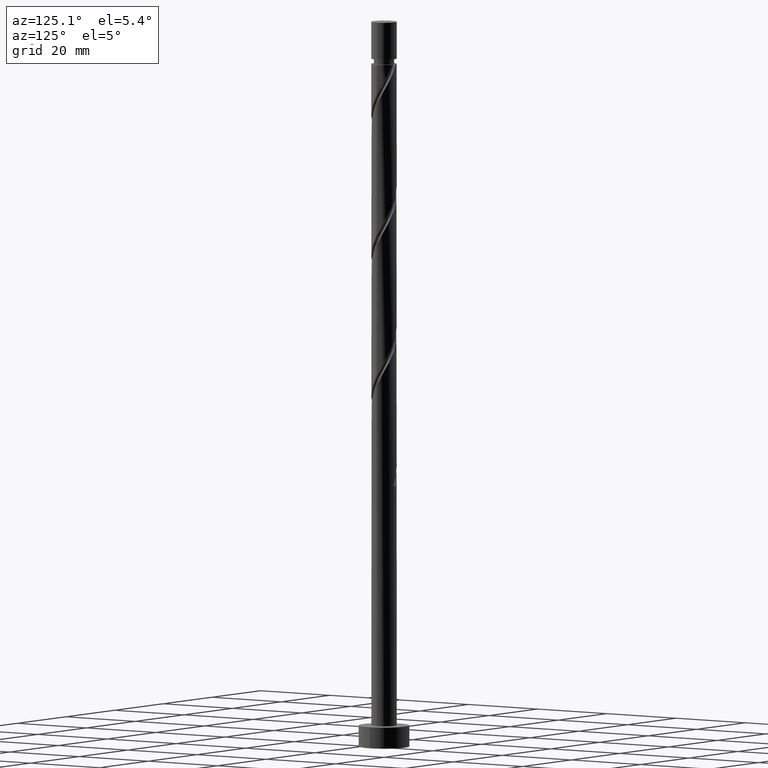
[diagram: clean part render]
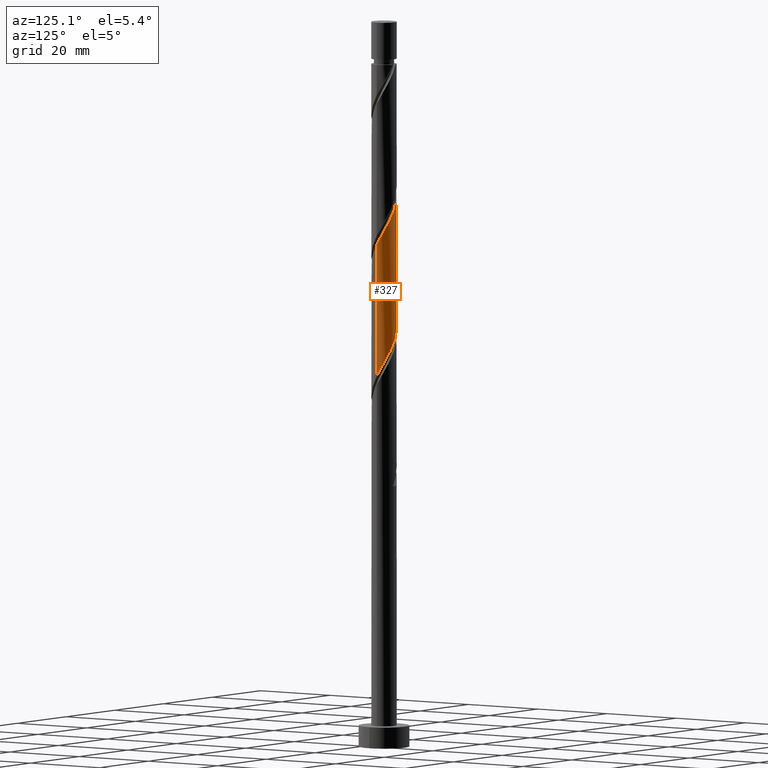
[diagram: same view with one face highlighted and labeled with its STEP entity id]
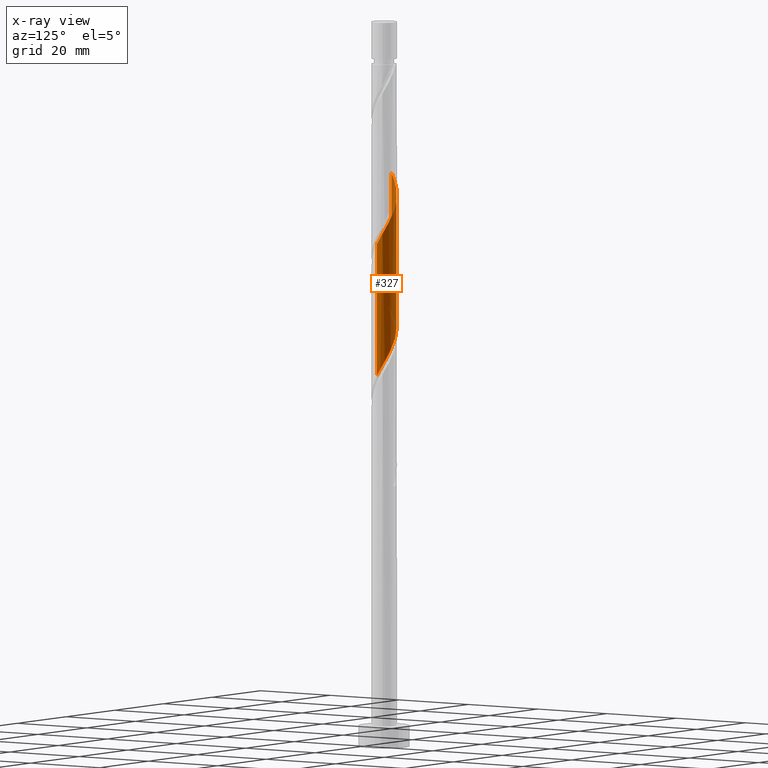
[diagram: x-ray of the same camera — body ghosted, the highlighted face saturated]
A machine part, auxiliary view. The second image highlights one B-rep face of the part: STEP entity #327.
The next image is the same camera in x-ray: the body ghosted, the highlighted face saturated — about 0% of this face is hidden behind the body in this view.
In plain terms, the highlighted cylindrical surface (edge-blend (fillet) strip) has radius 3 mm, axis along (-0, -0, -1).
Its self-contained STEP definition (entity closure, byte-faithful):
#20 = AXIS2_PLACEMENT_3D ( 'NONE', #70, #340, #803 ) ;
#24 = CARTESIAN_POINT ( 'NONE',  ( 2.282915221543595496, 1.986023542744032477, 91.88965961423274109 ) ) ;
#52 = CARTESIAN_POINT ( 'NONE',  ( -0.5784892297585053633, 2.970074347914948731, 97.44521516978829823 ) ) ;
#59 = CARTESIAN_POINT ( 'NONE',  ( 2.247618455994270903, 1.987010638188424494, 123.1396596142327837 ) ) ;
#69 = CARTESIAN_POINT ( 'NONE',  ( 2.940000000000006164, 0.5969924622639722900, 120.3618818364549696 ) ) ;
#70 = CARTESIAN_POINT ( 'NONE',  ( 0.000000000000000000, 0.000000000000000000, 172.0000000000000000 ) ) ;
#85 = CARTESIAN_POINT ( 'NONE',  ( 3.000000000000006661, 0.3015113445777605761, 119.8317415504341596 ) ) ;
#92 = EDGE_CURVE ( 'NONE', #1649, #217, #622, .T. ) ;
#151 = CARTESIAN_POINT ( 'NONE',  ( -3.000000000000002665, 0.3015113445777612977, 104.2253554558091082 ) ) ;
#159 = CARTESIAN_POINT ( 'NONE',  ( 2.994334948306426103, 0.1842775552007371032, 88.41743739201051255 ) ) ;
#177 = CARTESIAN_POINT ( 'NONE',  ( -2.247618455994264242, 1.987010638188424050, 100.9174373920105268 ) ) ;
#183 = CARTESIAN_POINT ( 'NONE',  ( 3.000000000000006217, -6.729202999629023784E-16, 119.2983151812449023 ) ) ;
#195 = CARTESIAN_POINT ( 'NONE',  ( -1.691106054833254158, 2.509213369244499336, 130.7785485031215842 ) ) ;
#217 = VERTEX_POINT ( 'NONE', #1245 ) ;
#262 = EDGE_CURVE ( 'NONE', #1167, #217, #717, .T. ) ;
#271 = DIRECTION ( 'NONE',  ( -0.000000000000000000, -0.000000000000000000, -1.000000000000000000 ) ) ;
#322 = CARTESIAN_POINT ( 'NONE',  ( 2.861404451302105301, 0.9840508051709160320, 121.0563262808993983 ) ) ;
#327 = ADVANCED_FACE ( 'NONE', ( #1158 ), #1282, .T. ) ;
#331 = CARTESIAN_POINT ( 'NONE',  ( 0.5784892297585085830, 2.970074347914953616, 126.6118818364549128 ) ) ;
#332 = CARTESIAN_POINT ( 'NONE',  ( 0.9840508051709190296, 2.861404451302098195, 94.66743739201054098 ) ) ;
#340 = DIRECTION ( 'NONE',  ( -0.000000000000000000, -0.000000000000000000, -1.000000000000000000 ) ) ;
#349 = CARTESIAN_POINT ( 'NONE',  ( -2.282915221543597273, 1.986023542744036696, 132.1674373920104699 ) ) ;
#440 = CARTESIAN_POINT ( 'NONE',  ( 3.000000000000000888, 0.09222585497301369339, 88.25527884635981479 ) ) ;
#449 = CARTESIAN_POINT ( 'NONE',  ( -2.940000000000001279, 0.5969924622639725120, 103.6952151697882840 ) ) ;
#459 = CARTESIAN_POINT ( 'NONE',  ( 2.844610918258237753, 0.9529893618115754528, 89.80632628089942671 ) ) ;
#468 = CARTESIAN_POINT ( 'NONE',  ( -2.685308910273297656, 1.337578430002084762, 102.3063262808993841 ) ) ;
#474 = CARTESIAN_POINT ( 'NONE',  ( -2.994334948306430988, 0.1842775552007399342, 135.6396596142328121 ) ) ;
#494 = VERTEX_POINT ( 'NONE', #972 ) ;
#510 = CARTESIAN_POINT ( 'NONE',  ( 3.000000000000006217, -6.729202999629023784E-16, 119.2983151812449023 ) ) ;
#577 = CARTESIAN_POINT ( 'NONE',  ( -1.656756518304341341, 2.501031355072559137, 99.52854850312164103 ) ) ;
#607 = CARTESIAN_POINT ( 'NONE',  ( -2.970074347914954505, 0.5784892297585066956, 134.9452151697882698 ) ) ;
#617 = CARTESIAN_POINT ( 'NONE',  ( -2.501031355072563134, 1.656756518304344894, 132.8618818364550123 ) ) ;
#622 = LINE ( 'NONE', #1162, #1606 ) ;
#659 = DIRECTION ( 'NONE',  ( -0.000000000000000000, -0.000000000000000000, -1.000000000000000000 ) ) ;
#679 = VECTOR ( 'NONE', #659, 1000.000000000000000 ) ;
#695 = CARTESIAN_POINT ( 'NONE',  ( 0.2099341193570283537, 3.018595548697902142, 96.05632628089942671 ) ) ;
#702 = CARTESIAN_POINT ( 'NONE',  ( 0.5969924622639728451, 2.940000000000001279, 95.36188183645499805 ) ) ;
#717 =( BOUNDED_CURVE ( )  B_SPLINE_CURVE ( 2, ( #1005, #151, #449, #1528, #468, #1388, #177, #1408, #577, #1111, #1548, #52, #865, #695, #702, #332, #1372, #1237, #1129, #24, #1642, #1652, #459, #996, #159, #440, #977 ),
 .UNSPECIFIED., .F., .T. ) 
 B_SPLINE_CURVE_WITH_KNOTS ( ( 3, 2, 2, 2, 2, 2, 2, 2, 2, 2, 2, 2, 2, 3 ),
 ( 0.6795317669814462391, 0.6875000000000000000, 0.6979166666666666297, 0.7083333333333333703, 0.7187500000000000000, 0.7291666666666666297, 0.7395833333333333703, 0.7500000000000000000, 0.7604166666666666297, 0.7708333333333333703, 0.7812500000000000000, 0.7916666666666666297, 0.8020833333333333703, 0.8045317669814464612 ),
 .UNSPECIFIED. ) 
 CURVE ( )  GEOMETRIC_REPRESENTATION_ITEM ( )  RATIONAL_B_SPLINE_CURVE ( ( 0.9062941362546392821, 0.9031415850403434753, 0.9090909090909189416, 0.9013135103398374204, 0.9090909090909189416, 0.9013135103398374204, 0.9090909090909189416, 0.9013135103398374204, 0.9090909090909189416, 0.9013135103398374204, 0.9090909090909189416, 0.9013135103398374204, 0.9090909090909189416, 0.9013135103398374204, 0.9090909090909189416, 0.9013135103398374204, 0.9090909090909189416, 0.9013135103398374204, 0.9090909090909189416, 0.9013135103398374204, 0.9090909090909189416, 0.9013135103398374204, 0.9090909090909189416, 0.9013135103398374204, 0.9090909090909189416, 0.9072628343904126647, 0.9062941362546392821 ) ) 
 REPRESENTATION_ITEM ( '' )  );
#740 = CARTESIAN_POINT ( 'NONE',  ( 0.9529893618115812259, 2.844610918258240861, 125.9174373920105552 ) ) ;
#749 = CARTESIAN_POINT ( 'NONE',  ( 1.327489493864653758, 2.719147488601527218, 125.2229929475660271 ) ) ;
#803 = DIRECTION ( 'NONE',  ( -1.000000000000000000, 0.000000000000000000, 0.000000000000000000 ) ) ;
#865 = CARTESIAN_POINT ( 'NONE',  ( -0.1842775552007384077, 2.994334948306426103, 96.75077072534386957 ) ) ;
#871 = CARTESIAN_POINT ( 'NONE',  ( -0.9840508051709169202, 2.861404451302104412, 129.3896596142326985 ) ) ;
#893 = CARTESIAN_POINT ( 'NONE',  ( -3.000000000000006661, -2.392605510979208467E-16, 135.9649818479116163 ) ) ;
#920 = CARTESIAN_POINT ( 'NONE',  ( -3.000000000000001332, -5.637576735244804235E-15, 104.7587818249983513 ) ) ;
#972 = CARTESIAN_POINT ( 'NONE',  ( -3.000000000000006661, -2.392605510979208467E-16, 135.9649818479116163 ) ) ;
#974 = EDGE_LOOP ( 'NONE', ( #1132, #1009, #1465, #1526 ) ) ;
#977 = CARTESIAN_POINT ( 'NONE',  ( 3.000000000000001332, -3.409462853145398924E-15, 88.09211515833165151 ) ) ;
#996 = CARTESIAN_POINT ( 'NONE',  ( 2.970074347914949175, 0.5784892297585032539, 89.11188183645498384 ) ) ;
#1004 = CARTESIAN_POINT ( 'NONE',  ( 1.656756518304345560, 2.501031355072563134, 124.5285485031216410 ) ) ;
#1005 = CARTESIAN_POINT ( 'NONE',  ( -3.000000000000001332, -5.637576735244804235E-15, 104.7587818249983656 ) ) ;
#1009 = ORIENTED_EDGE ( 'NONE', *, *, #92, .T. ) ;
#1111 = CARTESIAN_POINT ( 'NONE',  ( -1.327489493864649761, 2.719147488601524110, 98.83410405867719817 ) ) ;
#1129 = CARTESIAN_POINT ( 'NONE',  ( 1.987010638188424494, 2.247618455994262465, 92.58410405867719817 ) ) ;
#1132 = ORIENTED_EDGE ( 'NONE', *, *, #1480, .F. ) ;
#1141 = CARTESIAN_POINT ( 'NONE',  ( 1.986023542744038917, 2.282915221543595496, 123.8341040586771413 ) ) ;
#1150 = CARTESIAN_POINT ( 'NONE',  ( -1.987010638188426048, 2.247618455994269571, 131.4729929475660981 ) ) ;
#1157 = CARTESIAN_POINT ( 'NONE',  ( -0.2099341193570249398, 3.018595548697906583, 128.0007707253438127 ) ) ;
#1158 = FACE_OUTER_BOUND ( 'NONE', #974, .T. ) ;
#1162 = CARTESIAN_POINT ( 'NONE',  ( 3.000000000000000444, 3.673940397442059868E-16, 172.0000000000000000 ) ) ;
#1167 = VERTEX_POINT ( 'NONE', #920 ) ;
#1170 = CARTESIAN_POINT ( 'NONE',  ( -1.337578430002086316, 2.685308910273303429, 130.0841040586772124 ) ) ;
#1237 = CARTESIAN_POINT ( 'NONE',  ( 1.691106054833253713, 2.509213369244494896, 93.27854850312162682 ) ) ;
#1245 = CARTESIAN_POINT ( 'NONE',  ( 3.000000000000001332, -3.409462853145398924E-15, 88.09211515833166573 ) ) ;
#1271 = CARTESIAN_POINT ( 'NONE',  ( 2.685308910273303873, 1.337578430002084984, 121.7507707253438554 ) ) ;
#1281 = CARTESIAN_POINT ( 'NONE',  ( -2.844610918258241750, 0.9529893618115803378, 134.2507707253438696 ) ) ;
#1282 = CYLINDRICAL_SURFACE ( 'NONE', #20, 3.000000000000000444 ) ;
#1321 = CARTESIAN_POINT ( 'NONE',  ( -3.000000000000000444, 0.000000000000000000, 172.0000000000000000 ) ) ;
#1335 =( BOUNDED_CURVE ( )  B_SPLINE_CURVE ( 2, ( #183, #85, #69, #322, #1271, #1426, #59, #1141, #1004, #749, #740, #331, #1578, #1157, #1568, #871, #1170, #195, #1150, #349, #617, #1417, #1281, #607, #474, #1556, #893 ),
 .UNSPECIFIED., .F., .T. ) 
 B_SPLINE_CURVE_WITH_KNOTS ( ( 3, 2, 2, 2, 2, 2, 2, 2, 2, 2, 2, 2, 2, 3 ),
 ( 0.4295317669814462946, 0.4375000000000000000, 0.4479166666666666297, 0.4583333333333333703, 0.4687500000000000000, 0.4791666666666666297, 0.4895833333333333703, 0.5000000000000000000, 0.5104166666666667407, 0.5208333333333332593, 0.5312500000000000000, 0.5416666666666667407, 0.5520833333333332593, 0.5545317669814463502 ),
 .UNSPECIFIED. ) 
 CURVE ( )  GEOMETRIC_REPRESENTATION_ITEM ( )  RATIONAL_B_SPLINE_CURVE ( ( 0.9062941362546464985, 0.9031415850403508028, 0.9090909090909261581, 0.9013135103398447479, 0.9090909090909261581, 0.9013135103398447479, 0.9090909090909261581, 0.9013135103398447479, 0.9090909090909261581, 0.9013135103398447479, 0.9090909090909261581, 0.9013135103398447479, 0.9090909090909261581, 0.9013135103398447479, 0.9090909090909261581, 0.9013135103398447479, 0.9090909090909261581, 0.9013135103398447479, 0.9090909090909261581, 0.9013135103398447479, 0.9090909090909261581, 0.9013135103398447479, 0.9090909090909261581, 0.9013135103398447479, 0.9090909090909261581, 0.9072628343904198811, 0.9062941362546464985 ) ) 
 REPRESENTATION_ITEM ( '' )  );
#1372 = CARTESIAN_POINT ( 'NONE',  ( 1.337578430002086094, 2.685308910273296767, 93.97299294756608390 ) ) ;
#1388 = CARTESIAN_POINT ( 'NONE',  ( -2.509213369244495340, 1.691106054833252159, 101.6118818364549554 ) ) ;
#1408 = CARTESIAN_POINT ( 'NONE',  ( -1.986023542744033366, 2.282915221543594608, 100.2229929475660839 ) ) ;
#1417 = CARTESIAN_POINT ( 'NONE',  ( -2.719147488601528551, 1.327489493864652426, 133.5563262808993557 ) ) ;
#1426 = CARTESIAN_POINT ( 'NONE',  ( 2.509213369244501113, 1.691106054833252159, 122.4452151697882840 ) ) ;
#1465 = ORIENTED_EDGE ( 'NONE', *, *, #262, .F. ) ;
#1480 = EDGE_CURVE ( 'NONE', #1649, #494, #1335, .T. ) ;
#1526 = ORIENTED_EDGE ( 'NONE', *, *, #1567, .F. ) ;
#1528 = CARTESIAN_POINT ( 'NONE',  ( -2.861404451302099528, 0.9840508051709163651, 103.0007707253438269 ) ) ;
#1548 = CARTESIAN_POINT ( 'NONE',  ( -0.9529893618115774512, 2.844610918258237309, 98.13965961423275530 ) ) ;
#1556 = CARTESIAN_POINT ( 'NONE',  ( -3.000000000000006661, 0.09222585497301720447, 135.8018181598834531 ) ) ;
#1567 = EDGE_CURVE ( 'NONE', #494, #1167, #1733, .T. ) ;
#1568 = CARTESIAN_POINT ( 'NONE',  ( -0.5969924622639721790, 2.940000000000006164, 128.6952151697883266 ) ) ;
#1578 = CARTESIAN_POINT ( 'NONE',  ( 0.1842775552007419049, 2.994334948306430988, 127.3063262808994125 ) ) ;
#1606 = VECTOR ( 'NONE', #271, 1000.000000000000000 ) ;
#1642 = CARTESIAN_POINT ( 'NONE',  ( 2.501031355072559137, 1.656756518304340897, 91.19521516978831244 ) ) ;
#1649 = VERTEX_POINT ( 'NONE', #510 ) ;
#1652 = CARTESIAN_POINT ( 'NONE',  ( 2.719147488601524998, 1.327489493864647541, 90.50077072534386957 ) ) ;
#1733 = LINE ( 'NONE', #1321, #679 ) ;